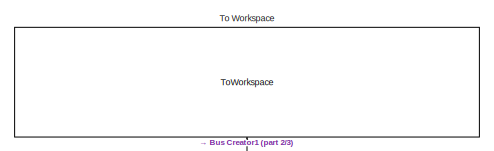
[diagram: root canvas - part 1/3, top right region]
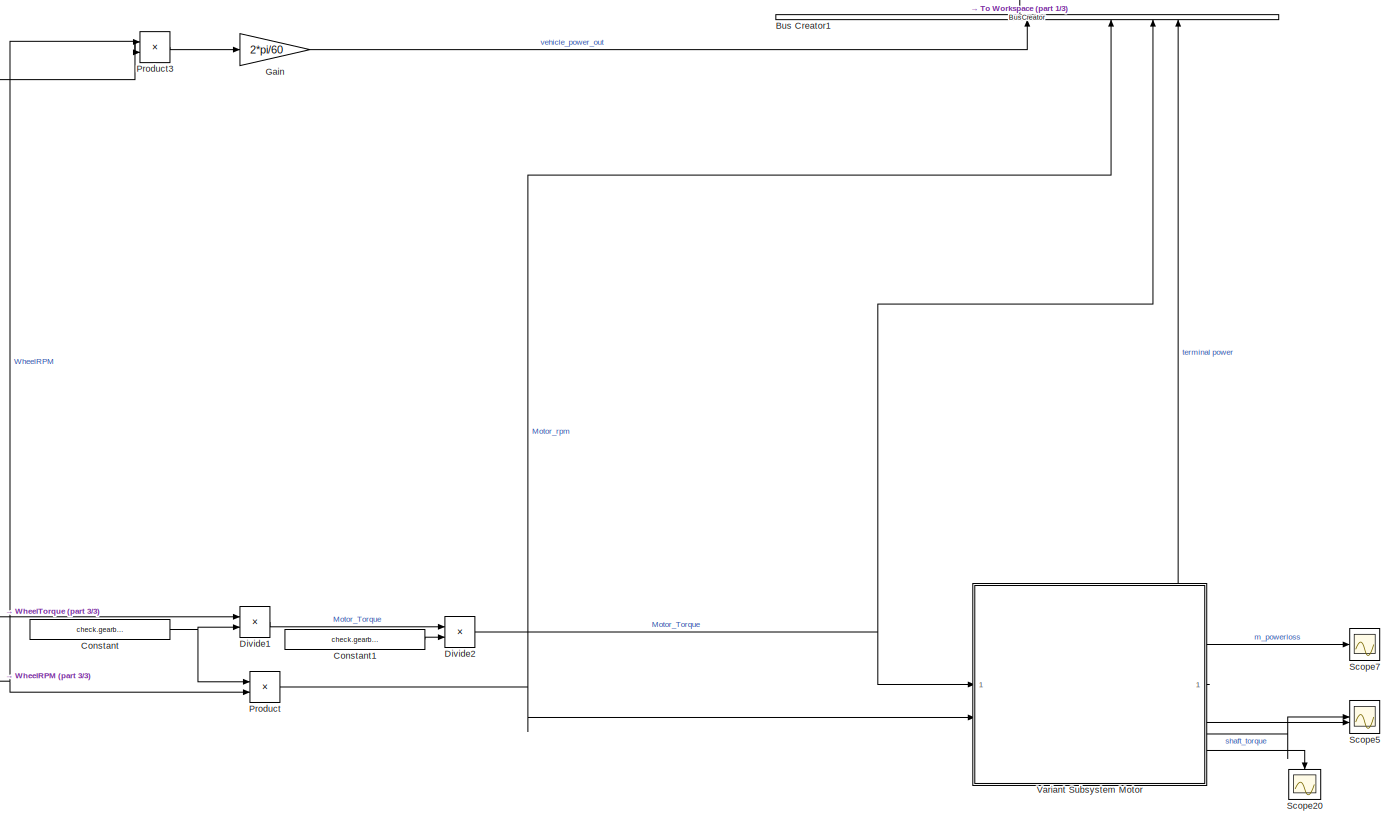
[diagram: root canvas - part 2/3, center side, full height]
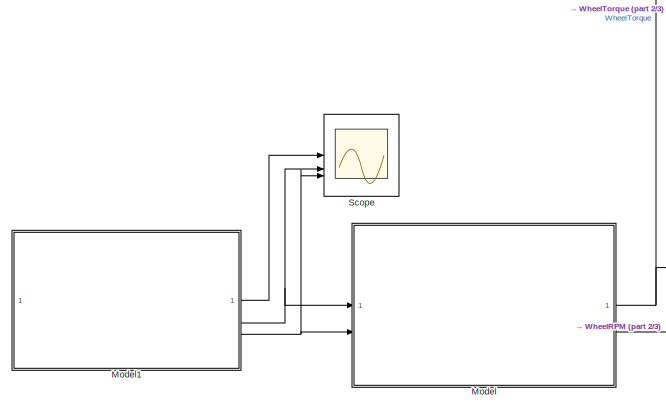
[diagram: root canvas - part 3/3, bottom left region]
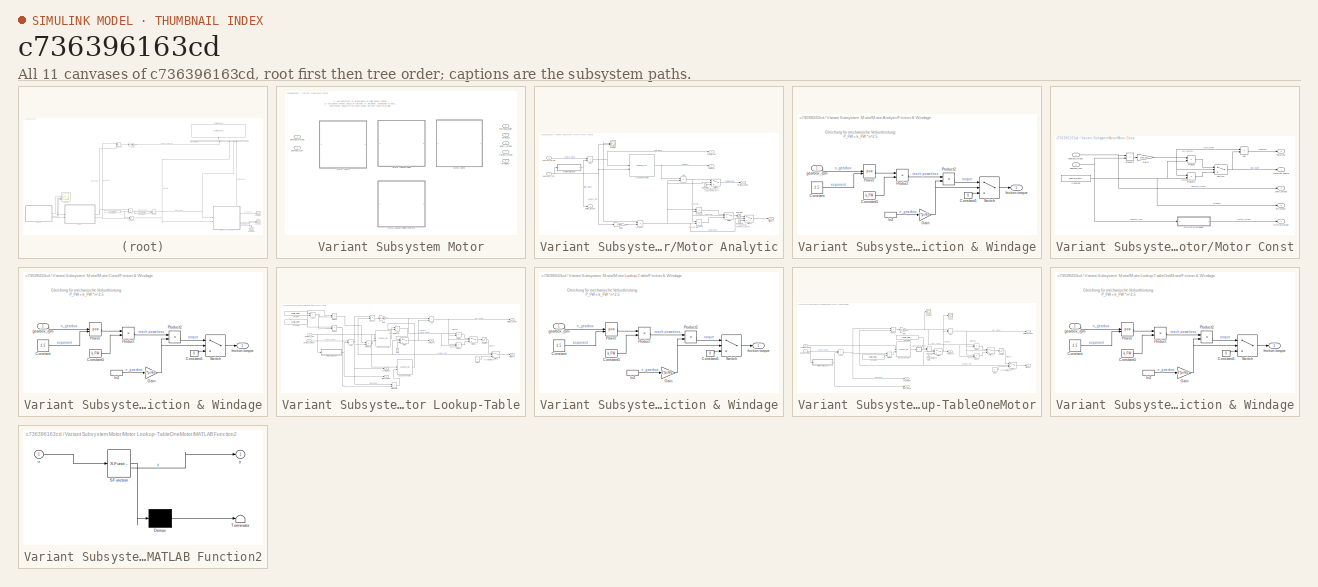
[diagram: thumbnail index - all 11 canvases of the model, root first then tree order]
MODEL slx_c736396163cd
KIND model
CONFIG AbsTol = auto
CONFIG EnableMultiTasking = on
CONFIG FixedStep = 0.001
CONFIG MaxStep = 0.1
CONFIG MinStep = auto
CONFIG RelTol = 1e-3
CONFIG SampleTimeConstraint = Unconstrained
CONFIG SolverName = ode45
CONFIG StartTime = 0.0
CONFIG StopTime = 1220
BLOCK [BusCreator] Bus Creator1
  DisplayOption = bar
  InheritFromInputs = on
  Inputs = 4
  NameLocation = right
BLOCK [Constant] Constant
  Value = check.gearbox_iges
BLOCK [Constant] Constant1
  Value = check.gearbox_efficiency
BLOCK [Product] Divide1
  Inputs = */
BLOCK [Product] Divide2
  Inputs = */
BLOCK [Gain] Gain
  Gain = 2*pi/60
BLOCK [ModelReference] Model
  ModelNameDialog = vehicle_model.slx
  ModelReferenceVersion = 2.0
BLOCK [ModelReference] Model1
  ModelNameDialog = drive_cycle.slx
  ModelReferenceVersion = 1.0
BLOCK [Product] Product
BLOCK [Product] Product3
BLOCK [Scope] Scope
  Floating = off
  NumInputPorts = 3
  ScopeSpecificationString = Simulink.scopes.TimeScopeBlockCfg('CurrentConfiguration', extmgr.ConfigurationSet(extmgr.Configuration('Core','General UI',true),extmgr.Configuration('Core','Source UI',true),extmgr.Configuration('Sources','WiredSimulink',true,'DataLoggingVariableName','ScopeData1'),extmgr.Configuration('Visuals','Time Domain',true,'SerializedDisplays',{struct('MinYLimReal','-159.75','MaxYLimReal','1437.75','YLabe...<+2726ch>
BLOCK [Scope] Scope20
  Floating = off
  NameLocation = left
  NumInputPorts = 1
  ScopeSpecificationString = Simulink.scopes.TimeScopeBlockCfg('CurrentConfiguration', extmgr.ConfigurationSet(extmgr.Configuration('Core','General UI',true),extmgr.Configuration('Core','Source UI',true),extmgr.Configuration('Sources','WiredSimulink',true,'DataLoggingVariableName','ScopeData5'),extmgr.Configuration('Visuals','Time Domain',true,'SerializedDisplays',{struct('MinYLimReal','-0.12143','MaxYLimReal','1.09284','YLab...<+1585ch>
BLOCK [Scope] Scope5
  Floating = off
  NumInputPorts = 2
  ScopeSpecificationString = Simulink.scopes.TimeScopeBlockCfg('CurrentConfiguration', extmgr.ConfigurationSet(extmgr.Configuration('Core','General UI',true),extmgr.Configuration('Core','Source UI',true),extmgr.Configuration('Sources','WiredSimulink',true,'DataLoggingVariableName','ScopeData1'),extmgr.Configuration('Visuals','Time Domain',true,'SerializedDisplays',{struct('MinYLimReal','-114.23633','MaxYLimReal','140.79313','...<+2163ch>
BLOCK [Scope] Scope7
  Floating = off
  NumInputPorts = 1
  ScopeSpecificationString = Simulink.scopes.TimeScopeBlockCfg('CurrentConfiguration', extmgr.ConfigurationSet(extmgr.Configuration('Core','General UI',true),extmgr.Configuration('Core','Source UI',true),extmgr.Configuration('Sources','WiredSimulink',true,'DataLoggingVariableName','ScopeData1'),extmgr.Configuration('Visuals','Time Domain',true,'SerializedDisplays',{struct('MinYLimReal','-442.03677','MaxYLimReal','3978.33091',...<+1586ch>
BLOCK [ToWorkspace] To Workspace
  FixptAsFi = on
  MaxDataPoints = inf
  NameLocation = right
  SampleTime = -1
  SaveFormat = Timeseries
  VariableName = sim_out
BLOCK [SubSystem] Variant Subsystem Motor
  Variant = on
BLOCK [SubSystem] Variant Subsystem Motor/Motor Analytic
  VariantControl = Motor_Mode == "Analytic"
BLOCK [Lookup_n-D] Variant Subsystem Motor/Motor Analytic/2-D Lookup Table
  BreakpointsForDimension1 = Analyse.Betriebsdaten.M_vec(end:-1:1)
  BreakpointsForDimension2 = Analyse.Betriebsdaten.n_m_mesh(Analyse.Optionen.M_tics,:)
  InputPortMap = u0,u1
  InternalRulePriority = Speed
  RndMeth = Simplest
  Table = Analyse.Verluste.P_vges_mesh(end:-1:1,:)
BLOCK [Sum] Variant Subsystem Motor/Motor Analytic/Add
  IconShape = rectangular
BLOCK [Sum] Variant Subsystem Motor/Motor Analytic/Add4
  IconShape = rectangular
BLOCK [Constant] Variant Subsystem Motor/Motor Analytic/Constant1
  Value = 0
BLOCK [Constant] Variant Subsystem Motor/Motor Analytic/Constant2
  Value = 0
BLOCK [SubSystem] Variant Subsystem Motor/Motor Analytic/Friction & Windage
BLOCK [Constant] Variant Subsystem Motor/Motor Analytic/Friction & Windage/Constant
  Value = 2.5
BLOCK [Constant] Variant Subsystem Motor/Motor Analytic/Friction & Windage/Constant1
  Value = 0
BLOCK [Constant] Variant Subsystem Motor/Motor Analytic/Friction & Windage/Constant5
  Value = k_FW
BLOCK [Gain] Variant Subsystem Motor/Motor Analytic/Friction & Windage/Gain
  Gain = 2*pi/60
BLOCK [InportShadow] Variant Subsystem Motor/Motor Analytic/Friction & Windage/In2
BLOCK [Math] Variant Subsystem Motor/Motor Analytic/Friction & Windage/Power
  Operator = pow
BLOCK [Product] Variant Subsystem Motor/Motor Analytic/Friction & Windage/Product
BLOCK [Product] Variant Subsystem Motor/Motor Analytic/Friction & Windage/Product2
  Inputs = */
BLOCK [Switch] Variant Subsystem Motor/Motor Analytic/Friction & Windage/Switch
  Criteria = u2 > Threshold
  InputSameDT = off
  SaturateOnIntegerOverflow = off
BLOCK [Outport] Variant Subsystem Motor/Motor Analytic/Friction & Windage/friction torque
BLOCK [Inport] Variant Subsystem Motor/Motor Analytic/Friction & Windage/gearbox_rpm
BLOCK [Gain] Variant Subsystem Motor/Motor Analytic/Gain1
  Gain = 2*pi/60
BLOCK [Product] Variant Subsystem Motor/Motor Analytic/Product
BLOCK [Product] Variant Subsystem Motor/Motor Analytic/Product1
  Inputs = */
BLOCK [Product] Variant Subsystem Motor/Motor Analytic/Product2
  Inputs = */
BLOCK [Saturate] Variant Subsystem Motor/Motor Analytic/Saturation
  LowerLimit = 0
  UpperLimit = inf
BLOCK [Scope] Variant Subsystem Motor/Motor Analytic/Scope1
  Floating = off
  NumInputPorts = 2
  ScopeSpecificationString = Simulink.scopes.TimeScopeBlockCfg('CurrentConfiguration', extmgr.ConfigurationSet(extmgr.Configuration('Core','General UI',true),extmgr.Configuration('Core','Source UI',true),extmgr.Configuration('Sources','WiredSimulink',true,'DataLoggingVariableName','ScopeData2'),extmgr.Configuration('Visuals','Time Domain',true,'SerializedDisplays',{struct('MinYLimReal','-130.63264','MaxYLimReal','156.1604','Y...<+2159ch>
BLOCK [Switch] Variant Subsystem Motor/Motor Analytic/Switch
  Criteria = u2 > Threshold
  InputSameDT = off
  SaturateOnIntegerOverflow = off
BLOCK [Switch] Variant Subsystem Motor/Motor Analytic/Switch1
  Criteria = u2 ~= 0
  InputSameDT = off
  SaturateOnIntegerOverflow = off
BLOCK [Switch] Variant Subsystem Motor/Motor Analytic/Switch2
  Criteria = u2 ~= 0
  InputSameDT = off
  SaturateOnIntegerOverflow = off
BLOCK [Outport] Variant Subsystem Motor/Motor Analytic/TotalLoss
  Port = 2
BLOCK [Outport] Variant Subsystem Motor/Motor Analytic/efficiency
  Port = 5
BLOCK [Outport] Variant Subsystem Motor/Motor Analytic/friction_torque
  Port = 4
BLOCK [Inport] Variant Subsystem Motor/Motor Analytic/gearbox_rpm
  Port = 2
BLOCK [Inport] Variant Subsystem Motor/Motor Analytic/gearbox_torque
BLOCK [Outport] Variant Subsystem Motor/Motor Analytic/shaft_torque
  Port = 3
BLOCK [Outport] Variant Subsystem Motor/Motor Analytic/terminal_power
BLOCK [SubSystem] Variant Subsystem Motor/Motor Const
  VariantControl = Motor_Mode == "Const"
BLOCK [Sum] Variant Subsystem Motor/Motor Const/Add
  IconShape = rectangular
  Inputs = -+
BLOCK [Constant] Variant Subsystem Motor/Motor Const/Constant
  Value = config_motor.efficiency
BLOCK [SubSystem] Variant Subsystem Motor/Motor Const/Friction & Windage
BLOCK [Constant] Variant Subsystem Motor/Motor Const/Friction & Windage/Constant
  Value = 2.5
BLOCK [Constant] Variant Subsystem Motor/Motor Const/Friction & Windage/Constant1
  Value = 0
BLOCK [Constant] Variant Subsystem Motor/Motor Const/Friction & Windage/Constant5
  Value = k_FW
BLOCK [Gain] Variant Subsystem Motor/Motor Const/Friction & Windage/Gain
  Gain = 2*pi/60
BLOCK [InportShadow] Variant Subsystem Motor/Motor Const/Friction & Windage/In2
BLOCK [Math] Variant Subsystem Motor/Motor Const/Friction & Windage/Power
  Operator = pow
BLOCK [Product] Variant Subsystem Motor/Motor Const/Friction & Windage/Product
BLOCK [Product] Variant Subsystem Motor/Motor Const/Friction & Windage/Product2
  Inputs = */
BLOCK [Switch] Variant Subsystem Motor/Motor Const/Friction & Windage/Switch
  Criteria = u2 > Threshold
  InputSameDT = off
  SaturateOnIntegerOverflow = off
BLOCK [Outport] Variant Subsystem Motor/Motor Const/Friction & Windage/friction torque
BLOCK [Inport] Variant Subsystem Motor/Motor Const/Friction & Windage/gearbox_rpm
BLOCK [Gain] Variant Subsystem Motor/Motor Const/Gain1
  Gain = 2*pi/60
BLOCK [Product] Variant Subsystem Motor/Motor Const/Product
  Inputs = */
BLOCK [Product] Variant Subsystem Motor/Motor Const/Product1
  Inputs = **
BLOCK [Product] Variant Subsystem Motor/Motor Const/Product2
BLOCK [Switch] Variant Subsystem Motor/Motor Const/Switch
  InputSameDT = off
  SaturateOnIntegerOverflow = off
BLOCK [Outport] Variant Subsystem Motor/Motor Const/TotalLoss
  Port = 2
BLOCK [Outport] Variant Subsystem Motor/Motor Const/efficiency
  Port = 5
BLOCK [Outport] Variant Subsystem Motor/Motor Const/friction_torque
  Port = 4
BLOCK [Inport] Variant Subsystem Motor/Motor Const/gearbox_rpm
  Port = 2
BLOCK [Inport] Variant Subsystem Motor/Motor Const/gearbox_torque
BLOCK [Outport] Variant Subsystem Motor/Motor Const/shaft_torque
  Port = 3
BLOCK [Outport] Variant Subsystem Motor/Motor Const/terminal_power
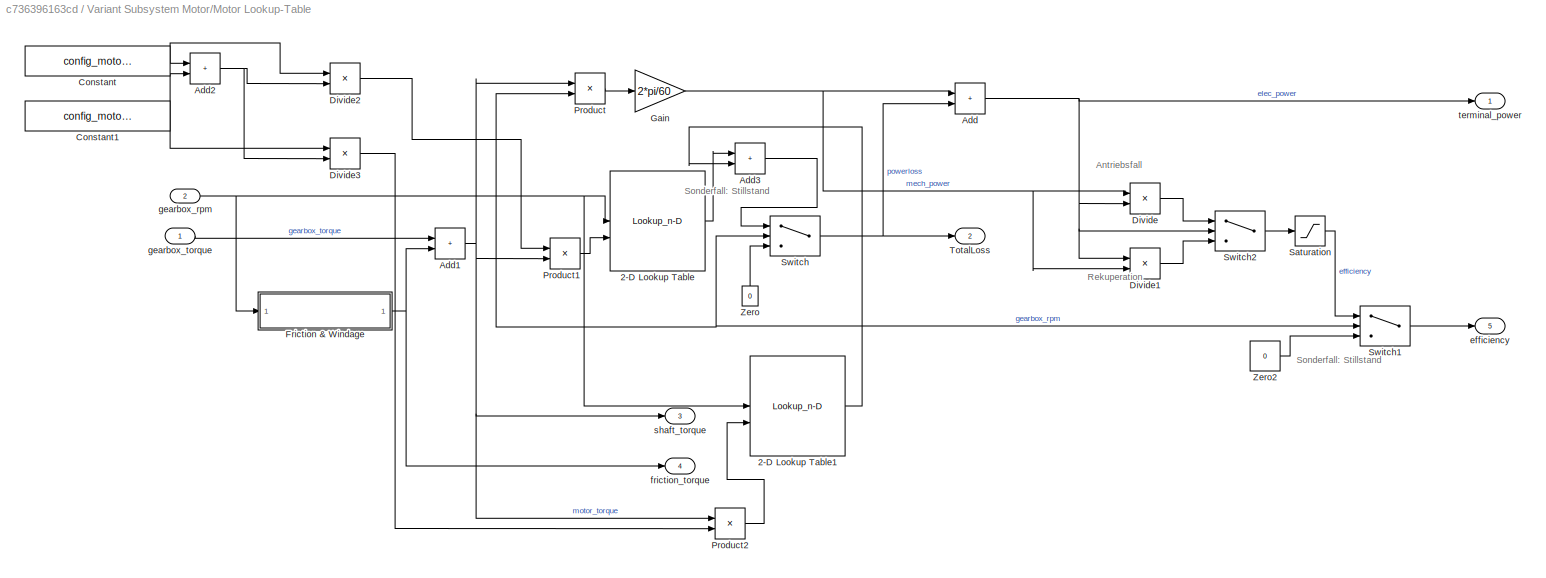
BLOCK [SubSystem] Variant Subsystem Motor/Motor Lookup-Table
  VariantControl = Motor_Mode == "Lookup"
BLOCK [Lookup_n-D] Variant Subsystem Motor/Motor Lookup-Table/2-D Lookup Table
  BreakpointsForDimension1 = motormap.nVec
  BreakpointsForDimension2 = motormap.MVec
  InputPortMap = u0,u1
  InternalRulePriority = Speed
  RndMeth = Simplest
  Table = motormap.Loss
BLOCK [Lookup_n-D] Variant Subsystem Motor/Motor Lookup-Table/2-D Lookup Table1
  BreakpointsForDimension1 = motormap2.nVec
  BreakpointsForDimension2 = motormap2.MVec
  InputPortMap = u0,u1
  InternalRulePriority = Speed
  RndMeth = Simplest
  Table = motormap2.Loss
BLOCK [Sum] Variant Subsystem Motor/Motor Lookup-Table/Add
  IconShape = rectangular
BLOCK [Sum] Variant Subsystem Motor/Motor Lookup-Table/Add1
  IconShape = rectangular
BLOCK [Sum] Variant Subsystem Motor/Motor Lookup-Table/Add2
  IconShape = rectangular
BLOCK [Sum] Variant Subsystem Motor/Motor Lookup-Table/Add3
  IconShape = rectangular
BLOCK [Constant] Variant Subsystem Motor/Motor Lookup-Table/Constant
  Value = config_motor.power1
BLOCK [Constant] Variant Subsystem Motor/Motor Lookup-Table/Constant1
  Value = config_motor.power2
BLOCK [Product] Variant Subsystem Motor/Motor Lookup-Table/Divide
  Inputs = */
BLOCK [Product] Variant Subsystem Motor/Motor Lookup-Table/Divide1
  Inputs = */
BLOCK [Product] Variant Subsystem Motor/Motor Lookup-Table/Divide2
  Inputs = */
BLOCK [Product] Variant Subsystem Motor/Motor Lookup-Table/Divide3
  Inputs = */
BLOCK [SubSystem] Variant Subsystem Motor/Motor Lookup-Table/Friction & Windage
BLOCK [Constant] Variant Subsystem Motor/Motor Lookup-Table/Friction & Windage/Constant
  Value = 2.5
BLOCK [Constant] Variant Subsystem Motor/Motor Lookup-Table/Friction & Windage/Constant1
  Value = 0
BLOCK [Constant] Variant Subsystem Motor/Motor Lookup-Table/Friction & Windage/Constant5
  Value = k_FW
BLOCK [Gain] Variant Subsystem Motor/Motor Lookup-Table/Friction & Windage/Gain
  Gain = 2*pi/60
BLOCK [InportShadow] Variant Subsystem Motor/Motor Lookup-Table/Friction & Windage/In2
BLOCK [Math] Variant Subsystem Motor/Motor Lookup-Table/Friction & Windage/Power
  Operator = pow
BLOCK [Product] Variant Subsystem Motor/Motor Lookup-Table/Friction & Windage/Product
BLOCK [Product] Variant Subsystem Motor/Motor Lookup-Table/Friction & Windage/Product2
  Inputs = */
BLOCK [Switch] Variant Subsystem Motor/Motor Lookup-Table/Friction & Windage/Switch
  Criteria = u2 > Threshold
  InputSameDT = off
  SaturateOnIntegerOverflow = off
BLOCK [Outport] Variant Subsystem Motor/Motor Lookup-Table/Friction & Windage/friction torque
BLOCK [Inport] Variant Subsystem Motor/Motor Lookup-Table/Friction & Windage/gearbox_rpm
BLOCK [Gain] Variant Subsystem Motor/Motor Lookup-Table/Gain
  Gain = 2*pi/60
BLOCK [Product] Variant Subsystem Motor/Motor Lookup-Table/Product
BLOCK [Product] Variant Subsystem Motor/Motor Lookup-Table/Product1
BLOCK [Product] Variant Subsystem Motor/Motor Lookup-Table/Product2
BLOCK [Saturate] Variant Subsystem Motor/Motor Lookup-Table/Saturation
  LowerLimit = 0
  UpperLimit = inf
BLOCK [Switch] Variant Subsystem Motor/Motor Lookup-Table/Switch
  Criteria = u2 ~= 0
  InputSameDT = off
  SaturateOnIntegerOverflow = off
  Threshold = 1
BLOCK [Switch] Variant Subsystem Motor/Motor Lookup-Table/Switch1
  Criteria = u2 ~= 0
  InputSameDT = off
  SaturateOnIntegerOverflow = off
BLOCK [Switch] Variant Subsystem Motor/Motor Lookup-Table/Switch2
  Criteria = u2 > Threshold
  InputSameDT = off
  SaturateOnIntegerOverflow = off
BLOCK [Outport] Variant Subsystem Motor/Motor Lookup-Table/TotalLoss
  Port = 2
BLOCK [Constant] Variant Subsystem Motor/Motor Lookup-Table/Zero
  NameLocation = right
  OutDataTypeStr = Inherit: Inherit via back propagation
  Value = 0
BLOCK [Constant] Variant Subsystem Motor/Motor Lookup-Table/Zero2
  OutDataTypeStr = Inherit: Inherit via back propagation
  Value = 0
BLOCK [Outport] Variant Subsystem Motor/Motor Lookup-Table/efficiency
  Port = 5
BLOCK [Outport] Variant Subsystem Motor/Motor Lookup-Table/friction_torque
  Port = 4
BLOCK [Inport] Variant Subsystem Motor/Motor Lookup-Table/gearbox_rpm
  Port = 2
BLOCK [Inport] Variant Subsystem Motor/Motor Lookup-Table/gearbox_torque
BLOCK [Outport] Variant Subsystem Motor/Motor Lookup-Table/shaft_torque
  Port = 3
BLOCK [Outport] Variant Subsystem Motor/Motor Lookup-Table/terminal_power
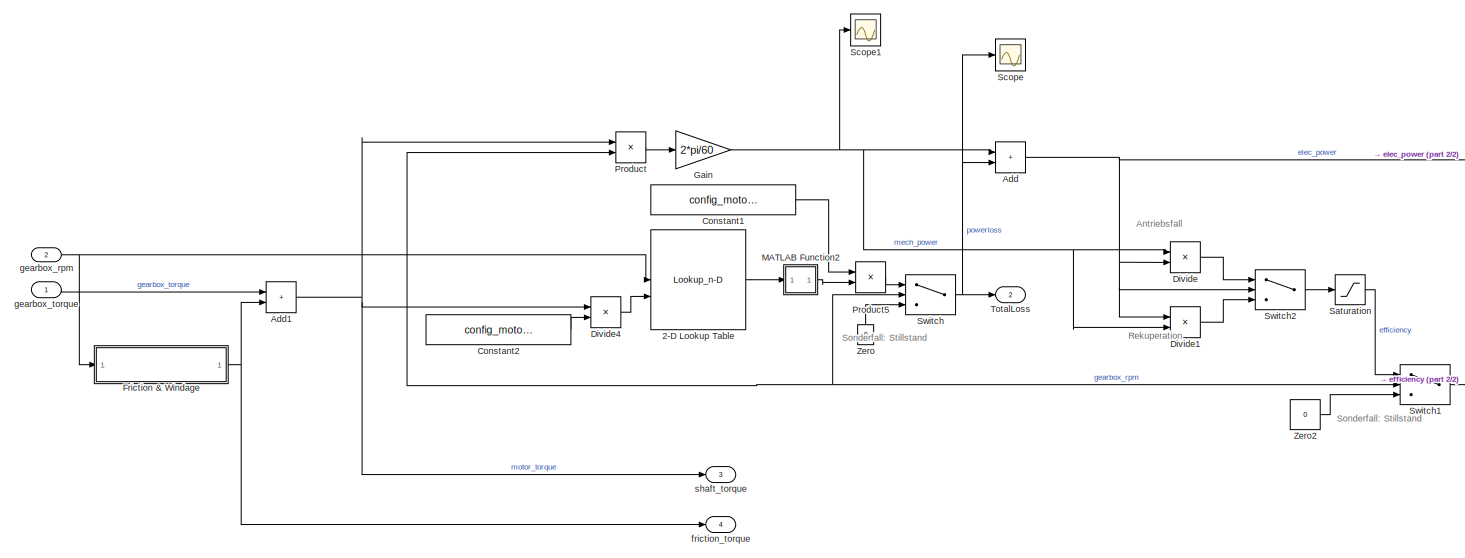
[diagram: Variant Subsystem Motor/Motor Lookup-TableOneMotor - part 1/2, most of the canvas]
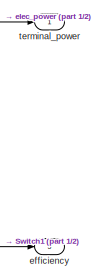
[diagram: Variant Subsystem Motor/Motor Lookup-TableOneMotor - part 2/2, middle right region]
BLOCK [SubSystem] Variant Subsystem Motor/Motor Lookup-TableOneMotor
  VariantControl = Motor_Mode == "LookupOneMotor"
BLOCK [Lookup_n-D] Variant Subsystem Motor/Motor Lookup-TableOneMotor/2-D Lookup Table
  BreakpointsForDimension1 = motormap.nVec
  BreakpointsForDimension2 = motormap.MVec
  InputPortMap = u0,u1
  InternalRulePriority = Speed
  RndMeth = Simplest
  Table = motormap.Loss
BLOCK [Sum] Variant Subsystem Motor/Motor Lookup-TableOneMotor/Add
  IconShape = rectangular
BLOCK [Sum] Variant Subsystem Motor/Motor Lookup-TableOneMotor/Add1
  IconShape = rectangular
BLOCK [Constant] Variant Subsystem Motor/Motor Lookup-TableOneMotor/Constant1
  Value = config_motor.motorsCount1
BLOCK [Constant] Variant Subsystem Motor/Motor Lookup-TableOneMotor/Constant2
  Value = config_motor.motorsCount1
BLOCK [Product] Variant Subsystem Motor/Motor Lookup-TableOneMotor/Divide
  Inputs = */
BLOCK [Product] Variant Subsystem Motor/Motor Lookup-TableOneMotor/Divide1
  Inputs = */
BLOCK [Product] Variant Subsystem Motor/Motor Lookup-TableOneMotor/Divide4
  Inputs = */
BLOCK [SubSystem] Variant Subsystem Motor/Motor Lookup-TableOneMotor/Friction & Windage
BLOCK [Constant] Variant Subsystem Motor/Motor Lookup-TableOneMotor/Friction & Windage/Constant
  Value = 2.5
BLOCK [Constant] Variant Subsystem Motor/Motor Lookup-TableOneMotor/Friction & Windage/Constant1
  Value = 0
BLOCK [Constant] Variant Subsystem Motor/Motor Lookup-TableOneMotor/Friction & Windage/Constant5
  Value = k_FW
BLOCK [Gain] Variant Subsystem Motor/Motor Lookup-TableOneMotor/Friction & Windage/Gain
  Gain = 2*pi/60
BLOCK [InportShadow] Variant Subsystem Motor/Motor Lookup-TableOneMotor/Friction & Windage/In2
BLOCK [Math] Variant Subsystem Motor/Motor Lookup-TableOneMotor/Friction & Windage/Power
  Operator = pow
BLOCK [Product] Variant Subsystem Motor/Motor Lookup-TableOneMotor/Friction & Windage/Product
BLOCK [Product] Variant Subsystem Motor/Motor Lookup-TableOneMotor/Friction & Windage/Product2
  Inputs = */
BLOCK [Switch] Variant Subsystem Motor/Motor Lookup-TableOneMotor/Friction & Windage/Switch
  Criteria = u2 > Threshold
  InputSameDT = off
  SaturateOnIntegerOverflow = off
BLOCK [Outport] Variant Subsystem Motor/Motor Lookup-TableOneMotor/Friction & Windage/friction torque
BLOCK [Inport] Variant Subsystem Motor/Motor Lookup-TableOneMotor/Friction & Windage/gearbox_rpm
BLOCK [Gain] Variant Subsystem Motor/Motor Lookup-TableOneMotor/Gain
  Gain = 2*pi/60
BLOCK [SubSystem] Variant Subsystem Motor/Motor Lookup-TableOneMotor/MATLAB Function2
  ErrorFcn = Stateflow.Translate.translate
  PermitHierarchicalResolution = ExplicitOnly
  SFBlockType = MATLAB Function
  TreatAsAtomicUnit = on
BLOCK [Demux] Variant Subsystem Motor/Motor Lookup-TableOneMotor/MATLAB Function2/ Demux 
  Outputs = 1
BLOCK [S-Function] Variant Subsystem Motor/Motor Lookup-TableOneMotor/MATLAB Function2/ SFunction 
  EnableBusSupport = on
  FunctionName = sf_sfun
  PortCounts = [1 2]
  SFcnIsStateOwnerBlock = off
  SFunctionDeploymentMode = off
  Tag = Stateflow S-Function 29
BLOCK [Terminator] Variant Subsystem Motor/Motor Lookup-TableOneMotor/MATLAB Function2/ Terminator 
BLOCK [Inport] Variant Subsystem Motor/Motor Lookup-TableOneMotor/MATLAB Function2/u
BLOCK [Outport] Variant Subsystem Motor/Motor Lookup-TableOneMotor/MATLAB Function2/y
BLOCK [Product] Variant Subsystem Motor/Motor Lookup-TableOneMotor/Product
BLOCK [Product] Variant Subsystem Motor/Motor Lookup-TableOneMotor/Product5
BLOCK [Saturate] Variant Subsystem Motor/Motor Lookup-TableOneMotor/Saturation
  LowerLimit = 0
  UpperLimit = inf
BLOCK [Scope] Variant Subsystem Motor/Motor Lookup-TableOneMotor/Scope
  Floating = off
  NumInputPorts = 1
  ScopeSpecificationString = Simulink.scopes.TimeScopeBlockCfg('CurrentConfiguration', extmgr.ConfigurationSet(extmgr.Configuration('Core','General UI',true),extmgr.Configuration('Core','Source UI',true),extmgr.Configuration('Sources','WiredSimulink',true,'DataLoggingVariableName','ScopeData1'),extmgr.Configuration('Visuals','Time Domain',true,'SerializedDisplays',{struct('MinYLimReal','-10','MaxYLimReal','10','YLabelReal',''...<+849ch>
BLOCK [Scope] Variant Subsystem Motor/Motor Lookup-TableOneMotor/Scope1
  Floating = off
  NumInputPorts = 1
  ScopeSpecificationString = Simulink.scopes.TimeScopeBlockCfg('CurrentConfiguration', extmgr.ConfigurationSet(extmgr.Configuration('Core','General UI',true),extmgr.Configuration('Core','Source UI',true),extmgr.Configuration('Sources','WiredSimulink',true,'DataLoggingVariableName','ScopeData2'),extmgr.Configuration('Visuals','Time Domain',true),extmgr.Configuration('Tools','Plot Navigation',true),extmgr.Configuration('Tools',...<+40ch>
BLOCK [Switch] Variant Subsystem Motor/Motor Lookup-TableOneMotor/Switch
  Criteria = u2 ~= 0
  InputSameDT = off
  SaturateOnIntegerOverflow = off
  Threshold = 1
BLOCK [Switch] Variant Subsystem Motor/Motor Lookup-TableOneMotor/Switch1
  Criteria = u2 ~= 0
  InputSameDT = off
  SaturateOnIntegerOverflow = off
BLOCK [Switch] Variant Subsystem Motor/Motor Lookup-TableOneMotor/Switch2
  Criteria = u2 > Threshold
  InputSameDT = off
  SaturateOnIntegerOverflow = off
BLOCK [Outport] Variant Subsystem Motor/Motor Lookup-TableOneMotor/TotalLoss
  Port = 2
BLOCK [Constant] Variant Subsystem Motor/Motor Lookup-TableOneMotor/Zero
  NameLocation = right
  OutDataTypeStr = Inherit: Inherit via back propagation
  Value = 0
BLOCK [Constant] Variant Subsystem Motor/Motor Lookup-TableOneMotor/Zero2
  OutDataTypeStr = Inherit: Inherit via back propagation
  Value = 0
BLOCK [Outport] Variant Subsystem Motor/Motor Lookup-TableOneMotor/efficiency
  Port = 5
BLOCK [Outport] Variant Subsystem Motor/Motor Lookup-TableOneMotor/friction_torque
  Port = 4
BLOCK [Inport] Variant Subsystem Motor/Motor Lookup-TableOneMotor/gearbox_rpm
  Port = 2
BLOCK [Inport] Variant Subsystem Motor/Motor Lookup-TableOneMotor/gearbox_torque
BLOCK [Outport] Variant Subsystem Motor/Motor Lookup-TableOneMotor/shaft_torque
  Port = 3
BLOCK [Outport] Variant Subsystem Motor/Motor Lookup-TableOneMotor/terminal_power
BLOCK [Outport] Variant Subsystem Motor/TotalLoss
  Port = 2
BLOCK [Outport] Variant Subsystem Motor/efficiency
  Port = 5
BLOCK [Outport] Variant Subsystem Motor/friction_torque
  Port = 4
BLOCK [Inport] Variant Subsystem Motor/gearbox_rpm
  Port = 2
BLOCK [Inport] Variant Subsystem Motor/gearbox_torque
BLOCK [Outport] Variant Subsystem Motor/shaft_torque
  Port = 3
BLOCK [Outport] Variant Subsystem Motor/terminal_power
ANNOTATION Variant Subsystem Motor: 1) Add Subsystem or Model blocks as valid variant choices. 2) You cannot connect blocks at this level. At simulation, connectivity is automatically determined, based on the active variant and port name matching.
ANNOTATION Variant Subsystem Motor/Motor Analytic: Antriebsfall
ANNOTATION Variant Subsystem Motor/Motor Analytic: Rekuperation
ANNOTATION Variant Subsystem Motor/Motor Analytic: Sonderfall: keine mech. Leistung
ANNOTATION Variant Subsystem Motor/Motor Analytic: Sonderfall: keine mech. Leistung gefordert
ANNOTATION Variant Subsystem Motor/Motor Analytic/Friction & Windage: Gleichung für mechanische Verlustleistung: P_FW = k_FW * n^2.5
ANNOTATION Variant Subsystem Motor/Motor Const: Antriebsfall
ANNOTATION Variant Subsystem Motor/Motor Const: Rekuperation
ANNOTATION Variant Subsystem Motor/Motor Const/Friction & Windage: Gleichung für mechanische Verlustleistung: P_FW = k_FW * n^2.5
ANNOTATION Variant Subsystem Motor/Motor Lookup-Table: Antriebsfall
ANNOTATION Variant Subsystem Motor/Motor Lookup-Table: Rekuperation
ANNOTATION Variant Subsystem Motor/Motor Lookup-Table: Sonderfall: Stillstand
ANNOTATION Variant Subsystem Motor/Motor Lookup-Table/Friction & Windage: Gleichung für mechanische Verlustleistung: P_FW = k_FW * n^2.5
ANNOTATION Variant Subsystem Motor/Motor Lookup-TableOneMotor: Antriebsfall
ANNOTATION Variant Subsystem Motor/Motor Lookup-TableOneMotor: Rekuperation
ANNOTATION Variant Subsystem Motor/Motor Lookup-TableOneMotor: Sonderfall: Stillstand
ANNOTATION Variant Subsystem Motor/Motor Lookup-TableOneMotor/Friction & Windage: Gleichung für mechanische Verlustleistung: P_FW = k_FW * n^2.5
LINE Bus Creator1:1 -> To Workspace:1
LINE Constant1:1 -> Divide2:2
NET Constant:1 -> Divide1:2, Product:1
LINE Divide1:1 -> Divide2:1
NET Divide2:1 -> Bus Creator1:3, Variant Subsystem Motor:1
LINE Gain:1 -> Bus Creator1:1
LINE Model1:1 -> Scope:1
NET Model1:2 -> Model:1, Scope:2
NET Model1:3 -> Model:2, Scope:3
NET Model:1 -> Divide1:1, Product3:1
NET Model:2 -> Product3:2, Product:2
LINE Product3:1 -> Gain:1
NET Product:1 -> Bus Creator1:2, Variant Subsystem Motor:2
NET Variant Subsystem Motor/Motor Analytic/2-D Lookup Table:1 -> Variant Subsystem Motor/Motor Analytic/Add:1, Variant Subsystem Motor/Motor Analytic/TotalLoss:1
NET Variant Subsystem Motor/Motor Analytic/Add4:1 -> Variant Subsystem Motor/Motor Analytic/2-D Lookup Table:1, Variant Subsystem Motor/Motor Analytic/Product:1, Variant Subsystem Motor/Motor Analytic/Scope1:1, Variant Subsystem Motor/Motor Analytic/shaft_torque:1
NET Variant Subsystem Motor/Motor Analytic/Add:1 -> Variant Subsystem Motor/Motor Analytic/Product1:2, Variant Subsystem Motor/Motor Analytic/Product2:1, Variant Subsystem Motor/Motor Analytic/Switch1:1, Variant Subsystem Motor/Motor Analytic/Switch:2
LINE Variant Subsystem Motor/Motor Analytic/Constant1:1 -> Variant Subsystem Motor/Motor Analytic/Switch2:3
LINE Variant Subsystem Motor/Motor Analytic/Constant2:1 -> Variant Subsystem Motor/Motor Analytic/Switch1:3
LINE Variant Subsystem Motor/Motor Analytic/Friction & Windage/Constant1:1 -> Variant Subsystem Motor/Motor Analytic/Friction & Windage/Switch:3
LINE Variant Subsystem Motor/Motor Analytic/Friction & Windage/Constant5:1 -> Variant Subsystem Motor/Motor Analytic/Friction & Windage/Product:2
LINE Variant Subsystem Motor/Motor Analytic/Friction & Windage/Constant:1 -> Variant Subsystem Motor/Motor Analytic/Friction & Windage/Power:2
NET Variant Subsystem Motor/Motor Analytic/Friction & Windage/Gain:1 -> Variant Subsystem Motor/Motor Analytic/Friction & Windage/Product2:2, Variant Subsystem Motor/Motor Analytic/Friction & Windage/Switch:2
LINE Variant Subsystem Motor/Motor Analytic/Friction & Windage/In2:1 -> Variant Subsystem Motor/Motor Analytic/Friction & Windage/Gain:1
LINE Variant Subsystem Motor/Motor Analytic/Friction & Windage/Power:1 -> Variant Subsystem Motor/Motor Analytic/Friction & Windage/Product:1
LINE Variant Subsystem Motor/Motor Analytic/Friction & Windage/Product2:1 -> Variant Subsystem Motor/Motor Analytic/Friction & Windage/Switch:1
LINE Variant Subsystem Motor/Motor Analytic/Friction & Windage/Product:1 -> Variant Subsystem Motor/Motor Analytic/Friction & Windage/Product2:1
LINE Variant Subsystem Motor/Motor Analytic/Friction & Windage/Switch:1 -> Variant Subsystem Motor/Motor Analytic/Friction & Windage/friction torque:1
LINE Variant Subsystem Motor/Motor Analytic/Friction & Windage/gearbox_rpm:1 -> Variant Subsystem Motor/Motor Analytic/Friction & Windage/Power:1
NET Variant Subsystem Motor/Motor Analytic/Friction & Windage:1 -> Variant Subsystem Motor/Motor Analytic/Add4:2, Variant Subsystem Motor/Motor Analytic/friction_torque:1
LINE Variant Subsystem Motor/Motor Analytic/Gain1:1 -> Variant Subsystem Motor/Motor Analytic/Product:2
LINE Variant Subsystem Motor/Motor Analytic/Product1:1 -> Variant Subsystem Motor/Motor Analytic/Switch:1
LINE Variant Subsystem Motor/Motor Analytic/Product2:1 -> Variant Subsystem Motor/Motor Analytic/Switch:3
NET Variant Subsystem Motor/Motor Analytic/Product:1 -> Variant Subsystem Motor/Motor Analytic/Add:2, Variant Subsystem Motor/Motor Analytic/Product1:1, Variant Subsystem Motor/Motor Analytic/Product2:2, Variant Subsystem Motor/Motor Analytic/Switch1:2, Variant Subsystem Motor/Motor Analytic/Switch2:2
LINE Variant Subsystem Motor/Motor Analytic/Saturation:1 -> Variant Subsystem Motor/Motor Analytic/Switch2:1
LINE Variant Subsystem Motor/Motor Analytic/Switch1:1 -> Variant Subsystem Motor/Motor Analytic/terminal_power:1
LINE Variant Subsystem Motor/Motor Analytic/Switch2:1 -> Variant Subsystem Motor/Motor Analytic/efficiency:1
LINE Variant Subsystem Motor/Motor Analytic/Switch:1 -> Variant Subsystem Motor/Motor Analytic/Saturation:1
NET Variant Subsystem Motor/Motor Analytic/gearbox_rpm:1 -> Variant Subsystem Motor/Motor Analytic/2-D Lookup Table:2, Variant Subsystem Motor/Motor Analytic/Friction & Windage:1, Variant Subsystem Motor/Motor Analytic/Gain1:1, Variant Subsystem Motor/Motor Analytic/Scope1:2
LINE Variant Subsystem Motor/Motor Analytic/gearbox_torque:1 -> Variant Subsystem Motor/Motor Analytic/Add4:1
LINE Variant Subsystem Motor/Motor Const/Add:1 -> Variant Subsystem Motor/Motor Const/TotalLoss:1
NET Variant Subsystem Motor/Motor Const/Constant:1 -> Variant Subsystem Motor/Motor Const/Product1:2, Variant Subsystem Motor/Motor Const/Product:2, Variant Subsystem Motor/Motor Const/efficiency:1
LINE Variant Subsystem Motor/Motor Const/Friction & Windage/Constant1:1 -> Variant Subsystem Motor/Motor Const/Friction & Windage/Switch:3
LINE Variant Subsystem Motor/Motor Const/Friction & Windage/Constant5:1 -> Variant Subsystem Motor/Motor Const/Friction & Windage/Product:2
LINE Variant Subsystem Motor/Motor Const/Friction & Windage/Constant:1 -> Variant Subsystem Motor/Motor Const/Friction & Windage/Power:2
NET Variant Subsystem Motor/Motor Const/Friction & Windage/Gain:1 -> Variant Subsystem Motor/Motor Const/Friction & Windage/Product2:2, Variant Subsystem Motor/Motor Const/Friction & Windage/Switch:2
LINE Variant Subsystem Motor/Motor Const/Friction & Windage/In2:1 -> Variant Subsystem Motor/Motor Const/Friction & Windage/Gain:1
LINE Variant Subsystem Motor/Motor Const/Friction & Windage/Power:1 -> Variant Subsystem Motor/Motor Const/Friction & Windage/Product:1
LINE Variant Subsystem Motor/Motor Const/Friction & Windage/Product2:1 -> Variant Subsystem Motor/Motor Const/Friction & Windage/Switch:1
LINE Variant Subsystem Motor/Motor Const/Friction & Windage/Product:1 -> Variant Subsystem Motor/Motor Const/Friction & Windage/Product2:1
LINE Variant Subsystem Motor/Motor Const/Friction & Windage/Switch:1 -> Variant Subsystem Motor/Motor Const/Friction & Windage/friction torque:1
LINE Variant Subsystem Motor/Motor Const/Friction & Windage/gearbox_rpm:1 -> Variant Subsystem Motor/Motor Const/Friction & Windage/Power:1
LINE Variant Subsystem Motor/Motor Const/Friction & Windage:1 -> Variant Subsystem Motor/Motor Const/friction_torque:1
NET Variant Subsystem Motor/Motor Const/Gain1:1 -> Variant Subsystem Motor/Motor Const/Add:1, Variant Subsystem Motor/Motor Const/Product1:1, Variant Subsystem Motor/Motor Const/Product:1, Variant Subsystem Motor/Motor Const/Switch:2
LINE Variant Subsystem Motor/Motor Const/Product1:1 -> Variant Subsystem Motor/Motor Const/Switch:3
LINE Variant Subsystem Motor/Motor Const/Product2:1 -> Variant Subsystem Motor/Motor Const/Gain1:1
LINE Variant Subsystem Motor/Motor Const/Product:1 -> Variant Subsystem Motor/Motor Const/Switch:1
NET Variant Subsystem Motor/Motor Const/Switch:1 -> Variant Subsystem Motor/Motor Const/Add:2, Variant Subsystem Motor/Motor Const/terminal_power:1
NET Variant Subsystem Motor/Motor Const/gearbox_rpm:1 -> Variant Subsystem Motor/Motor Const/Friction & Windage:1, Variant Subsystem Motor/Motor Const/Product2:2
NET Variant Subsystem Motor/Motor Const/gearbox_torque:1 -> Variant Subsystem Motor/Motor Const/Product2:1, Variant Subsystem Motor/Motor Const/shaft_torque:1
LINE Variant Subsystem Motor/Motor Lookup-Table/2-D Lookup Table1:1 -> Variant Subsystem Motor/Motor Lookup-Table/Add3:2
LINE Variant Subsystem Motor/Motor Lookup-Table/2-D Lookup Table:1 -> Variant Subsystem Motor/Motor Lookup-Table/Add3:1
NET Variant Subsystem Motor/Motor Lookup-Table/Add1:1 -> Variant Subsystem Motor/Motor Lookup-Table/Product1:2, Variant Subsystem Motor/Motor Lookup-Table/Product2:1, Variant Subsystem Motor/Motor Lookup-Table/Product:1, Variant Subsystem Motor/Motor Lookup-Table/shaft_torque:1
NET Variant Subsystem Motor/Motor Lookup-Table/Add2:1 -> Variant Subsystem Motor/Motor Lookup-Table/Divide2:2, Variant Subsystem Motor/Motor Lookup-Table/Divide3:2
LINE Variant Subsystem Motor/Motor Lookup-Table/Add3:1 -> Variant Subsystem Motor/Motor Lookup-Table/Switch:1
NET Variant Subsystem Motor/Motor Lookup-Table/Add:1 -> Variant Subsystem Motor/Motor Lookup-Table/Divide1:1, Variant Subsystem Motor/Motor Lookup-Table/Divide:2, Variant Subsystem Motor/Motor Lookup-Table/Switch2:2, Variant Subsystem Motor/Motor Lookup-Table/terminal_power:1
NET Variant Subsystem Motor/Motor Lookup-Table/Constant1:1 -> Variant Subsystem Motor/Motor Lookup-Table/Add2:2, Variant Subsystem Motor/Motor Lookup-Table/Divide3:1
NET Variant Subsystem Motor/Motor Lookup-Table/Constant:1 -> Variant Subsystem Motor/Motor Lookup-Table/Add2:1, Variant Subsystem Motor/Motor Lookup-Table/Divide2:1
LINE Variant Subsystem Motor/Motor Lookup-Table/Divide1:1 -> Variant Subsystem Motor/Motor Lookup-Table/Switch2:3
LINE Variant Subsystem Motor/Motor Lookup-Table/Divide2:1 -> Variant Subsystem Motor/Motor Lookup-Table/Product1:1
LINE Variant Subsystem Motor/Motor Lookup-Table/Divide3:1 -> Variant Subsystem Motor/Motor Lookup-Table/Product2:2
LINE Variant Subsystem Motor/Motor Lookup-Table/Divide:1 -> Variant Subsystem Motor/Motor Lookup-Table/Switch2:1
LINE Variant Subsystem Motor/Motor Lookup-Table/Friction & Windage/Constant1:1 -> Variant Subsystem Motor/Motor Lookup-Table/Friction & Windage/Switch:3
LINE Variant Subsystem Motor/Motor Lookup-Table/Friction & Windage/Constant5:1 -> Variant Subsystem Motor/Motor Lookup-Table/Friction & Windage/Product:2
LINE Variant Subsystem Motor/Motor Lookup-Table/Friction & Windage/Constant:1 -> Variant Subsystem Motor/Motor Lookup-Table/Friction & Windage/Power:2
NET Variant Subsystem Motor/Motor Lookup-Table/Friction & Windage/Gain:1 -> Variant Subsystem Motor/Motor Lookup-Table/Friction & Windage/Product2:2, Variant Subsystem Motor/Motor Lookup-Table/Friction & Windage/Switch:2
LINE Variant Subsystem Motor/Motor Lookup-Table/Friction & Windage/In2:1 -> Variant Subsystem Motor/Motor Lookup-Table/Friction & Windage/Gain:1
LINE Variant Subsystem Motor/Motor Lookup-Table/Friction & Windage/Power:1 -> Variant Subsystem Motor/Motor Lookup-Table/Friction & Windage/Product:1
LINE Variant Subsystem Motor/Motor Lookup-Table/Friction & Windage/Product2:1 -> Variant Subsystem Motor/Motor Lookup-Table/Friction & Windage/Switch:1
LINE Variant Subsystem Motor/Motor Lookup-Table/Friction & Windage/Product:1 -> Variant Subsystem Motor/Motor Lookup-Table/Friction & Windage/Product2:1
LINE Variant Subsystem Motor/Motor Lookup-Table/Friction & Windage/Switch:1 -> Variant Subsystem Motor/Motor Lookup-Table/Friction & Windage/friction torque:1
LINE Variant Subsystem Motor/Motor Lookup-Table/Friction & Windage/gearbox_rpm:1 -> Variant Subsystem Motor/Motor Lookup-Table/Friction & Windage/Power:1
NET Variant Subsystem Motor/Motor Lookup-Table/Friction & Windage:1 -> Variant Subsystem Motor/Motor Lookup-Table/Add1:2, Variant Subsystem Motor/Motor Lookup-Table/friction_torque:1
NET Variant Subsystem Motor/Motor Lookup-Table/Gain:1 -> Variant Subsystem Motor/Motor Lookup-Table/Add:1, Variant Subsystem Motor/Motor Lookup-Table/Divide1:2, Variant Subsystem Motor/Motor Lookup-Table/Divide:1
LINE Variant Subsystem Motor/Motor Lookup-Table/Product1:1 -> Variant Subsystem Motor/Motor Lookup-Table/2-D Lookup Table:2
LINE Variant Subsystem Motor/Motor Lookup-Table/Product2:1 -> Variant Subsystem Motor/Motor Lookup-Table/2-D Lookup Table1:2
LINE Variant Subsystem Motor/Motor Lookup-Table/Product:1 -> Variant Subsystem Motor/Motor Lookup-Table/Gain:1
LINE Variant Subsystem Motor/Motor Lookup-Table/Saturation:1 -> Variant Subsystem Motor/Motor Lookup-Table/Switch1:1
LINE Variant Subsystem Motor/Motor Lookup-Table/Switch1:1 -> Variant Subsystem Motor/Motor Lookup-Table/efficiency:1
LINE Variant Subsystem Motor/Motor Lookup-Table/Switch2:1 -> Variant Subsystem Motor/Motor Lookup-Table/Saturation:1
NET Variant Subsystem Motor/Motor Lookup-Table/Switch:1 -> Variant Subsystem Motor/Motor Lookup-Table/Add:2, Variant Subsystem Motor/Motor Lookup-Table/TotalLoss:1
LINE Variant Subsystem Motor/Motor Lookup-Table/Zero2:1 -> Variant Subsystem Motor/Motor Lookup-Table/Switch1:3
LINE Variant Subsystem Motor/Motor Lookup-Table/Zero:1 -> Variant Subsystem Motor/Motor Lookup-Table/Switch:3
NET Variant Subsystem Motor/Motor Lookup-Table/gearbox_rpm:1 -> Variant Subsystem Motor/Motor Lookup-Table/2-D Lookup Table1:1, Variant Subsystem Motor/Motor Lookup-Table/2-D Lookup Table:1, Variant Subsystem Motor/Motor Lookup-Table/Friction & Windage:1, Variant Subsystem Motor/Motor Lookup-Table/Product:2, Variant Subsystem Motor/Motor Lookup-Table/Switch1:2, Variant Subsystem Motor/Motor Lookup-Table/Switch:2
LINE Variant Subsystem Motor/Motor Lookup-Table/gearbox_torque:1 -> Variant Subsystem Motor/Motor Lookup-Table/Add1:1
LINE Variant Subsystem Motor/Motor Lookup-TableOneMotor/2-D Lookup Table:1 -> Variant Subsystem Motor/Motor Lookup-TableOneMotor/MATLAB Function2:1
NET Variant Subsystem Motor/Motor Lookup-TableOneMotor/Add1:1 -> Variant Subsystem Motor/Motor Lookup-TableOneMotor/Divide4:1, Variant Subsystem Motor/Motor Lookup-TableOneMotor/Product:1, Variant Subsystem Motor/Motor Lookup-TableOneMotor/shaft_torque:1
NET Variant Subsystem Motor/Motor Lookup-TableOneMotor/Add:1 -> Variant Subsystem Motor/Motor Lookup-TableOneMotor/Divide1:1, Variant Subsystem Motor/Motor Lookup-TableOneMotor/Divide:2, Variant Subsystem Motor/Motor Lookup-TableOneMotor/Switch2:2, Variant Subsystem Motor/Motor Lookup-TableOneMotor/terminal_power:1
LINE Variant Subsystem Motor/Motor Lookup-TableOneMotor/Constant1:1 -> Variant Subsystem Motor/Motor Lookup-TableOneMotor/Product5:1
LINE Variant Subsystem Motor/Motor Lookup-TableOneMotor/Constant2:1 -> Variant Subsystem Motor/Motor Lookup-TableOneMotor/Divide4:2
LINE Variant Subsystem Motor/Motor Lookup-TableOneMotor/Divide1:1 -> Variant Subsystem Motor/Motor Lookup-TableOneMotor/Switch2:3
LINE Variant Subsystem Motor/Motor Lookup-TableOneMotor/Divide4:1 -> Variant Subsystem Motor/Motor Lookup-TableOneMotor/2-D Lookup Table:2
LINE Variant Subsystem Motor/Motor Lookup-TableOneMotor/Divide:1 -> Variant Subsystem Motor/Motor Lookup-TableOneMotor/Switch2:1
LINE Variant Subsystem Motor/Motor Lookup-TableOneMotor/Friction & Windage/Constant1:1 -> Variant Subsystem Motor/Motor Lookup-TableOneMotor/Friction & Windage/Switch:3
LINE Variant Subsystem Motor/Motor Lookup-TableOneMotor/Friction & Windage/Constant5:1 -> Variant Subsystem Motor/Motor Lookup-TableOneMotor/Friction & Windage/Product:2
LINE Variant Subsystem Motor/Motor Lookup-TableOneMotor/Friction & Windage/Constant:1 -> Variant Subsystem Motor/Motor Lookup-TableOneMotor/Friction & Windage/Power:2
NET Variant Subsystem Motor/Motor Lookup-TableOneMotor/Friction & Windage/Gain:1 -> Variant Subsystem Motor/Motor Lookup-TableOneMotor/Friction & Windage/Product2:2, Variant Subsystem Motor/Motor Lookup-TableOneMotor/Friction & Windage/Switch:2
LINE Variant Subsystem Motor/Motor Lookup-TableOneMotor/Friction & Windage/In2:1 -> Variant Subsystem Motor/Motor Lookup-TableOneMotor/Friction & Windage/Gain:1
LINE Variant Subsystem Motor/Motor Lookup-TableOneMotor/Friction & Windage/Power:1 -> Variant Subsystem Motor/Motor Lookup-TableOneMotor/Friction & Windage/Product:1
LINE Variant Subsystem Motor/Motor Lookup-TableOneMotor/Friction & Windage/Product2:1 -> Variant Subsystem Motor/Motor Lookup-TableOneMotor/Friction & Windage/Switch:1
LINE Variant Subsystem Motor/Motor Lookup-TableOneMotor/Friction & Windage/Product:1 -> Variant Subsystem Motor/Motor Lookup-TableOneMotor/Friction & Windage/Product2:1
LINE Variant Subsystem Motor/Motor Lookup-TableOneMotor/Friction & Windage/Switch:1 -> Variant Subsystem Motor/Motor Lookup-TableOneMotor/Friction & Windage/friction torque:1
LINE Variant Subsystem Motor/Motor Lookup-TableOneMotor/Friction & Windage/gearbox_rpm:1 -> Variant Subsystem Motor/Motor Lookup-TableOneMotor/Friction & Windage/Power:1
NET Variant Subsystem Motor/Motor Lookup-TableOneMotor/Friction & Windage:1 -> Variant Subsystem Motor/Motor Lookup-TableOneMotor/Add1:2, Variant Subsystem Motor/Motor Lookup-TableOneMotor/friction_torque:1
NET Variant Subsystem Motor/Motor Lookup-TableOneMotor/Gain:1 -> Variant Subsystem Motor/Motor Lookup-TableOneMotor/Add:1, Variant Subsystem Motor/Motor Lookup-TableOneMotor/Divide1:2, Variant Subsystem Motor/Motor Lookup-TableOneMotor/Divide:1, Variant Subsystem Motor/Motor Lookup-TableOneMotor/Scope1:1
LINE Variant Subsystem Motor/Motor Lookup-TableOneMotor/MATLAB Function2:1 -> Variant Subsystem Motor/Motor Lookup-TableOneMotor/Product5:2
LINE Variant Subsystem Motor/Motor Lookup-TableOneMotor/Product5:1 -> Variant Subsystem Motor/Motor Lookup-TableOneMotor/Switch:1
LINE Variant Subsystem Motor/Motor Lookup-TableOneMotor/Product:1 -> Variant Subsystem Motor/Motor Lookup-TableOneMotor/Gain:1
LINE Variant Subsystem Motor/Motor Lookup-TableOneMotor/Saturation:1 -> Variant Subsystem Motor/Motor Lookup-TableOneMotor/Switch1:1
LINE Variant Subsystem Motor/Motor Lookup-TableOneMotor/Switch1:1 -> Variant Subsystem Motor/Motor Lookup-TableOneMotor/efficiency:1
LINE Variant Subsystem Motor/Motor Lookup-TableOneMotor/Switch2:1 -> Variant Subsystem Motor/Motor Lookup-TableOneMotor/Saturation:1
NET Variant Subsystem Motor/Motor Lookup-TableOneMotor/Switch:1 -> Variant Subsystem Motor/Motor Lookup-TableOneMotor/Add:2, Variant Subsystem Motor/Motor Lookup-TableOneMotor/Scope:1, Variant Subsystem Motor/Motor Lookup-TableOneMotor/TotalLoss:1
LINE Variant Subsystem Motor/Motor Lookup-TableOneMotor/Zero2:1 -> Variant Subsystem Motor/Motor Lookup-TableOneMotor/Switch1:3
LINE Variant Subsystem Motor/Motor Lookup-TableOneMotor/Zero:1 -> Variant Subsystem Motor/Motor Lookup-TableOneMotor/Switch:3
NET Variant Subsystem Motor/Motor Lookup-TableOneMotor/gearbox_rpm:1 -> Variant Subsystem Motor/Motor Lookup-TableOneMotor/2-D Lookup Table:1, Variant Subsystem Motor/Motor Lookup-TableOneMotor/Friction & Windage:1, Variant Subsystem Motor/Motor Lookup-TableOneMotor/Product:2, Variant Subsystem Motor/Motor Lookup-TableOneMotor/Switch1:2, Variant Subsystem Motor/Motor Lookup-TableOneMotor/Switch:2
LINE Variant Subsystem Motor/Motor Lookup-TableOneMotor/gearbox_torque:1 -> Variant Subsystem Motor/Motor Lookup-TableOneMotor/Add1:1
LINE Variant Subsystem Motor:1 -> Bus Creator1:4
LINE Variant Subsystem Motor:2 -> Scope7:1
LINE Variant Subsystem Motor:3 -> Scope5:1
LINE Variant Subsystem Motor:4 -> Scope5:2
LINE Variant Subsystem Motor:5 -> Scope20:1
note: NET lines group one-source signal fan-out (src -> all destinations, sorted); 1:1 wires keep LINE
CHART Variant Subsystem Motor/Motor Lookup-TableOneMotor/MATLAB Function2 states=1 transitions=1
  STATE_LABEL 'eML_blk_kernel()'
  STATE_LABEL "SCRIPT:\nfunction y = fcn(u)\n\nif isnan(u)\n    %warning('P_motor_111 is NaN. Setting it to 0.');\n    y = 0;\nelse\n    y = u;\nend\n"
CHART  states=0 transitions=0
